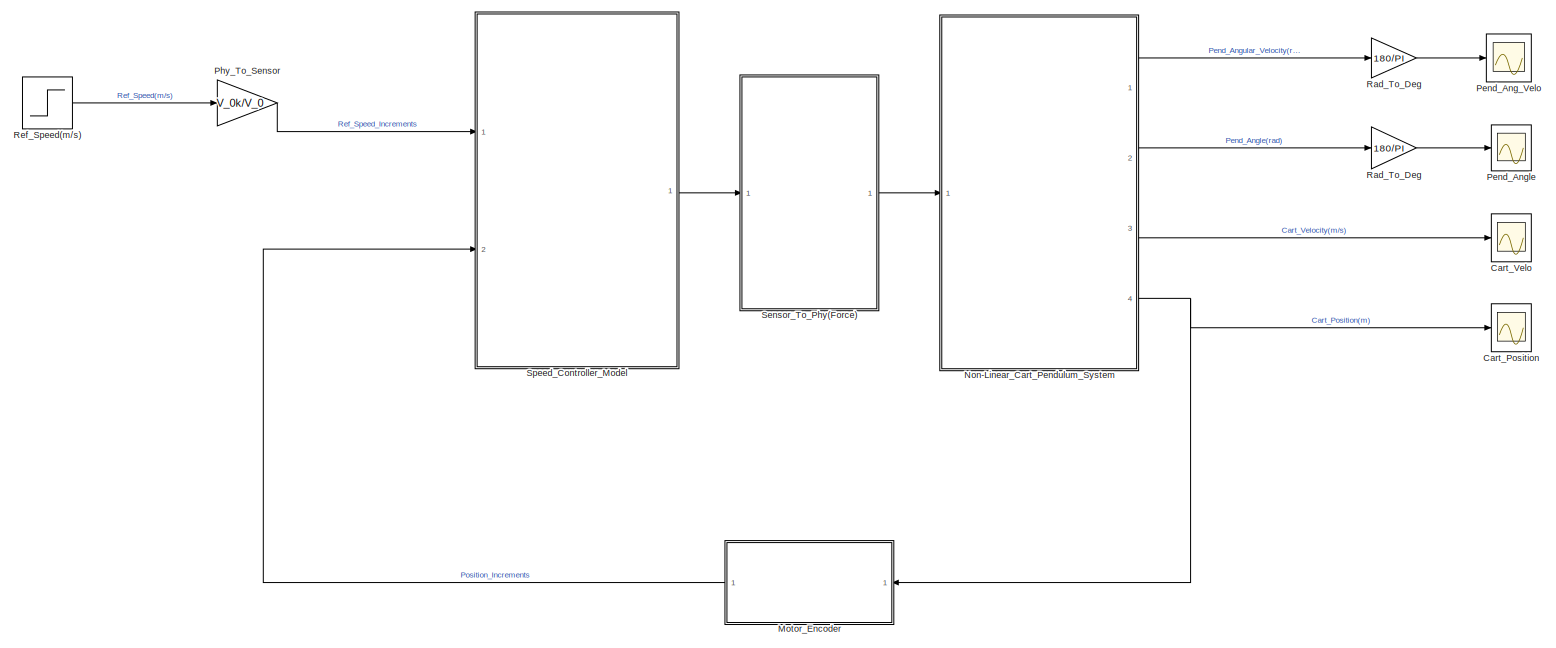
[diagram: root canvas - part 1/1, most of the canvas]
MODEL slx_7cfc7b07550b
KIND model
CONFIG AbsTol = auto
CONFIG EnableMultiTasking = off
CONFIG FixedStep = auto
CONFIG MaxStep = auto
CONFIG MinStep = auto
CONFIG RelTol = 1e-3
CONFIG SampleTimeConstraint = Unconstrained
CONFIG SolverName = VariableStepAuto
CONFIG StartTime = 0.0
CONFIG StopTime = 10.0
BLOCK [Scope] Cart_Position
  Floating = off
  NumInputPorts = 1
  Ports = [1]
  ScopeSpecificationString = Simulink.scopes.TimeScopeBlockCfg('CurrentConfiguration', extmgr.ConfigurationSet(extmgr.Configuration('Core','General UI',true),extmgr.Configuration('Core','Source UI',true),extmgr.Configuration('Sources','WiredSimulink',true,'DataLoggingVariableName','ScopeData1'),extmgr.Configuration('Visuals','Time Domain',true,'SerializedDisplays',{struct('MinYLimReal','-0.56316','MaxYLimReal','5.06841','YLab...<+1433ch>
BLOCK [Scope] Cart_Velo
  Floating = off
  NumInputPorts = 1
  Ports = [1]
  ScopeSpecificationString = Simulink.scopes.TimeScopeBlockCfg('CurrentConfiguration', extmgr.ConfigurationSet(extmgr.Configuration('Core','General UI',true),extmgr.Configuration('Core','Source UI',true),extmgr.Configuration('Sources','WiredSimulink',true,'DataLoggingVariableName','ScopeData2'),extmgr.Configuration('Visuals','Time Domain',true,'SerializedDisplays',{struct('MinYLimReal','-0.06874','MaxYLimReal','0.61869','YLab...<+1454ch>
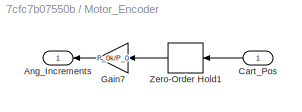
BLOCK [SubSystem] Motor_Encoder
  Ports = [1, 1]
  RequestExecContextInheritance = off
BLOCK [Outport] Motor_Encoder/Ang_Increments
BLOCK [Inport] Motor_Encoder/Cart_Pos
BLOCK [Gain] Motor_Encoder/Gain7
  Gain = P_0k/P_0
  NameLocation = top
BLOCK [ZeroOrderHold] Motor_Encoder/Zero-Order Hold1
  NameLocation = top
  SampleTime = Ts
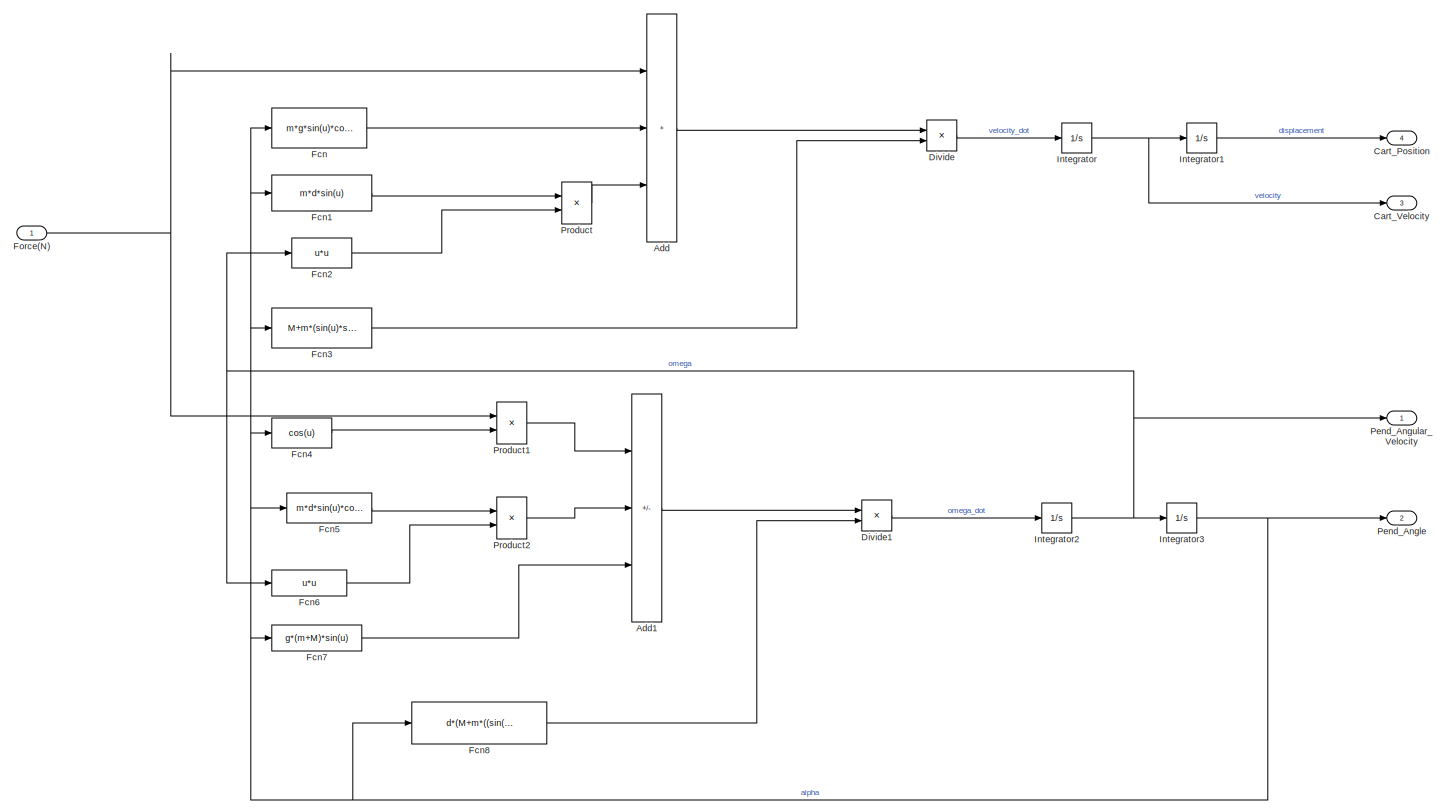
[diagram: Non-Linear_Cart_Pendulum_System - part 1/1, most of the canvas]
BLOCK [SubSystem] Non-Linear_Cart_Pendulum_System
  Ports = [1, 4]
  RequestExecContextInheritance = off
BLOCK [Sum] Non-Linear_Cart_Pendulum_System/Add
  IconShape = rectangular
  Inputs = +++
  Ports = [3, 1]
BLOCK [Sum] Non-Linear_Cart_Pendulum_System/Add1
  IconShape = rectangular
  Inputs = ---
  Ports = [3, 1]
BLOCK [Outport] Non-Linear_Cart_Pendulum_System/Cart_Position
  Port = 4
  VectorParamsAs1DForOutWhenUnconnected = off
BLOCK [Outport] Non-Linear_Cart_Pendulum_System/Cart_Velocity
  Port = 3
  VectorParamsAs1DForOutWhenUnconnected = off
BLOCK [Product] Non-Linear_Cart_Pendulum_System/Divide
  Inputs = */
  Ports = [2, 1]
BLOCK [Product] Non-Linear_Cart_Pendulum_System/Divide1
  Inputs = */
  Ports = [2, 1]
BLOCK [Fcn] Non-Linear_Cart_Pendulum_System/Fcn
  Expr = m*g*sin(u)*cos(u)
BLOCK [Fcn] Non-Linear_Cart_Pendulum_System/Fcn1
  Expr = m*d*sin(u)
BLOCK [Fcn] Non-Linear_Cart_Pendulum_System/Fcn2
  Expr = u*u
BLOCK [Fcn] Non-Linear_Cart_Pendulum_System/Fcn3
  Expr = M+m*(sin(u)*sin(u))
BLOCK [Fcn] Non-Linear_Cart_Pendulum_System/Fcn4
  Expr = cos(u)
BLOCK [Fcn] Non-Linear_Cart_Pendulum_System/Fcn5
  Expr = m*d*sin(u)*cos(u)
BLOCK [Fcn] Non-Linear_Cart_Pendulum_System/Fcn6
  Expr = u*u
BLOCK [Fcn] Non-Linear_Cart_Pendulum_System/Fcn7
  Expr = g*(m+M)*sin(u)
BLOCK [Fcn] Non-Linear_Cart_Pendulum_System/Fcn8
  Expr = d*(M+m*((sin(u)*sin(u))))
BLOCK [Inport] Non-Linear_Cart_Pendulum_System/Force(N)
BLOCK [Integrator] Non-Linear_Cart_Pendulum_System/Integrator
  Ports = [1, 1]
BLOCK [Integrator] Non-Linear_Cart_Pendulum_System/Integrator1
  Ports = [1, 1]
BLOCK [Integrator] Non-Linear_Cart_Pendulum_System/Integrator2
  Ports = [1, 1]
BLOCK [Integrator] Non-Linear_Cart_Pendulum_System/Integrator3
  Ports = [1, 1]
BLOCK [Outport] Non-Linear_Cart_Pendulum_System/Pend_Angle
  Port = 2
  VectorParamsAs1DForOutWhenUnconnected = off
BLOCK [Outport] Non-Linear_Cart_Pendulum_System/Pend_Angular_Velocity
  VectorParamsAs1DForOutWhenUnconnected = off
BLOCK [Product] Non-Linear_Cart_Pendulum_System/Product
  Ports = [2, 1]
BLOCK [Product] Non-Linear_Cart_Pendulum_System/Product1
  Ports = [2, 1]
BLOCK [Product] Non-Linear_Cart_Pendulum_System/Product2
  Ports = [2, 1]
BLOCK [Scope] Pend_Ang_Velo
  Floating = off
  NumInputPorts = 1
  Ports = [1]
  ScopeSpecificationString = Simulink.scopes.TimeScopeBlockCfg('CurrentConfiguration', extmgr.ConfigurationSet(extmgr.Configuration('Core','General UI',true),extmgr.Configuration('Core','Source UI',true),extmgr.Configuration('Sources','WiredSimulink',true,'DataLoggingVariableName','ScopeData3'),extmgr.Configuration('Visuals','Time Domain',true,'SerializedDisplays',{struct('MinYLimReal','-1.82564','MaxYLimReal','1.17546','YLab...<+1394ch>
BLOCK [Scope] Pend_Angle
  Floating = off
  NumInputPorts = 1
  Ports = [1]
  ScopeSpecificationString = Simulink.scopes.TimeScopeBlockCfg('CurrentConfiguration', extmgr.ConfigurationSet(extmgr.Configuration('Core','General UI',true),extmgr.Configuration('Core','Source UI',true),extmgr.Configuration('Sources','WiredSimulink',true),extmgr.Configuration('Visuals','Time Domain',true,'SerializedDisplays',{struct('MinYLimReal','-0.36043','MaxYLimReal','0.24687','YLabelReal','','MinYLimMag','0.00000','MaxY...<+1455ch>
BLOCK [Gain] Phy_To_Sensor
  Gain = V_0k/V_0
BLOCK [Gain] Rad_To_Deg
  Gain = 180/PI
BLOCK [Gain] Rad_To_Deg 
  Gain = 180/PI
BLOCK [Step] Ref_Speed(m//s)
  After = 0.5
  SampleTime = Ts
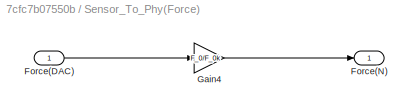
BLOCK [SubSystem] Sensor_To_Phy(Force)
  Ports = [1, 1]
  RequestExecContextInheritance = off
BLOCK [Inport] Sensor_To_Phy(Force)/Force(DAC)
BLOCK [Outport] Sensor_To_Phy(Force)/Force(N)
BLOCK [Gain] Sensor_To_Phy(Force)/Gain4
  Gain = F_0/F_0k
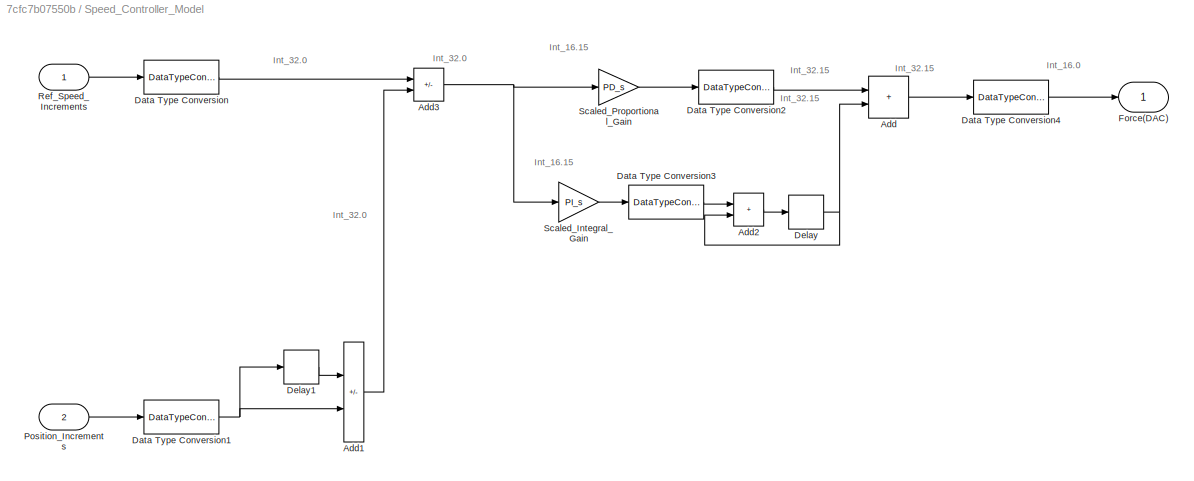
BLOCK [SubSystem] Speed_Controller_Model
  Ports = [2, 1]
  RequestExecContextInheritance = off
BLOCK [Sum] Speed_Controller_Model/Add
  IconShape = rectangular
  Ports = [2, 1]
BLOCK [Sum] Speed_Controller_Model/Add1
  IconShape = rectangular
  Inputs = -+
  Ports = [2, 1]
BLOCK [Sum] Speed_Controller_Model/Add2
  IconShape = rectangular
  Ports = [2, 1]
BLOCK [Sum] Speed_Controller_Model/Add3
  IconShape = rectangular
  Inputs = +-
  Ports = [2, 1]
BLOCK [DataTypeConversion] Speed_Controller_Model/Data Type Conversion
  OutDataTypeStr = int32
  RndMeth = Floor
  SaturateOnIntegerOverflow = off
BLOCK [DataTypeConversion] Speed_Controller_Model/Data Type Conversion1
  OutDataTypeStr = int32
  RndMeth = Floor
  SaturateOnIntegerOverflow = off
BLOCK [DataTypeConversion] Speed_Controller_Model/Data Type Conversion2
  OutDataTypeStr = fixdt(1,32,PI_SHIFT)
  RndMeth = Floor
  SaturateOnIntegerOverflow = off
BLOCK [DataTypeConversion] Speed_Controller_Model/Data Type Conversion3
  OutDataTypeStr = fixdt(1,32,PD_SHIFT)
  RndMeth = Floor
  SaturateOnIntegerOverflow = off
BLOCK [DataTypeConversion] Speed_Controller_Model/Data Type Conversion4
  OutDataTypeStr = int16
  RndMeth = Floor
  SaturateOnIntegerOverflow = off
BLOCK [Delay] Speed_Controller_Model/Delay
  DelayLength = 1
  InputPortMap = u0
  Ports = [1, 1]
  SampleTime = Ts
BLOCK [Delay] Speed_Controller_Model/Delay1
  DelayLength = 1
  InputPortMap = u0
  Ports = [1, 1]
  SampleTime = Ts
BLOCK [Outport] Speed_Controller_Model/Force(DAC)
BLOCK [Inport] Speed_Controller_Model/Position_Increments
  Port = 2
BLOCK [Inport] Speed_Controller_Model/Ref_Speed_Increments
BLOCK [Gain] Speed_Controller_Model/Scaled_Integral_Gain
  Gain = PI_s
BLOCK [Gain] Speed_Controller_Model/Scaled_Proportional_Gain
  Gain = PD_s
ANNOTATION Speed_Controller_Model: Int_16.15
ANNOTATION Speed_Controller_Model: Int_16.0
ANNOTATION Speed_Controller_Model: Int_32.15
ANNOTATION Speed_Controller_Model: Int_32.0
LINE Motor_Encoder/Cart_Pos:1 -> Motor_Encoder/Zero-Order Hold1:1
LINE Motor_Encoder/Gain7:1 -> Motor_Encoder/Ang_Increments:1
LINE Motor_Encoder/Zero-Order Hold1:1 -> Motor_Encoder/Gain7:1
LINE Motor_Encoder:1 -> Speed_Controller_Model:2
LINE Non-Linear_Cart_Pendulum_System/Add1:1 -> Non-Linear_Cart_Pendulum_System/Divide1:1
LINE Non-Linear_Cart_Pendulum_System/Add:1 -> Non-Linear_Cart_Pendulum_System/Divide:1
LINE Non-Linear_Cart_Pendulum_System/Divide1:1 -> Non-Linear_Cart_Pendulum_System/Integrator2:1
LINE Non-Linear_Cart_Pendulum_System/Divide:1 -> Non-Linear_Cart_Pendulum_System/Integrator:1
LINE Non-Linear_Cart_Pendulum_System/Fcn1:1 -> Non-Linear_Cart_Pendulum_System/Product:1
LINE Non-Linear_Cart_Pendulum_System/Fcn2:1 -> Non-Linear_Cart_Pendulum_System/Product:2
LINE Non-Linear_Cart_Pendulum_System/Fcn3:1 -> Non-Linear_Cart_Pendulum_System/Divide:2
LINE Non-Linear_Cart_Pendulum_System/Fcn4:1 -> Non-Linear_Cart_Pendulum_System/Product1:2
LINE Non-Linear_Cart_Pendulum_System/Fcn5:1 -> Non-Linear_Cart_Pendulum_System/Product2:1
LINE Non-Linear_Cart_Pendulum_System/Fcn6:1 -> Non-Linear_Cart_Pendulum_System/Product2:2
LINE Non-Linear_Cart_Pendulum_System/Fcn7:1 -> Non-Linear_Cart_Pendulum_System/Add1:3
LINE Non-Linear_Cart_Pendulum_System/Fcn8:1 -> Non-Linear_Cart_Pendulum_System/Divide1:2
LINE Non-Linear_Cart_Pendulum_System/Fcn:1 -> Non-Linear_Cart_Pendulum_System/Add:2
NET Non-Linear_Cart_Pendulum_System/Force(N):1 -> Non-Linear_Cart_Pendulum_System/Add:1, Non-Linear_Cart_Pendulum_System/Product1:1
LINE Non-Linear_Cart_Pendulum_System/Integrator1:1 -> Non-Linear_Cart_Pendulum_System/Cart_Position:1
NET Non-Linear_Cart_Pendulum_System/Integrator2:1 -> Non-Linear_Cart_Pendulum_System/Fcn2:1, Non-Linear_Cart_Pendulum_System/Fcn6:1, Non-Linear_Cart_Pendulum_System/Integrator3:1, Non-Linear_Cart_Pendulum_System/Pend_Angular_Velocity:1
NET Non-Linear_Cart_Pendulum_System/Integrator3:1 -> Non-Linear_Cart_Pendulum_System/Fcn1:1, Non-Linear_Cart_Pendulum_System/Fcn3:1, Non-Linear_Cart_Pendulum_System/Fcn4:1, Non-Linear_Cart_Pendulum_System/Fcn5:1, Non-Linear_Cart_Pendulum_System/Fcn7:1, Non-Linear_Cart_Pendulum_System/Fcn8:1, Non-Linear_Cart_Pendulum_System/Fcn:1, Non-Linear_Cart_Pendulum_System/Pend_Angle:1
NET Non-Linear_Cart_Pendulum_System/Integrator:1 -> Non-Linear_Cart_Pendulum_System/Cart_Velocity:1, Non-Linear_Cart_Pendulum_System/Integrator1:1
LINE Non-Linear_Cart_Pendulum_System/Product1:1 -> Non-Linear_Cart_Pendulum_System/Add1:1
LINE Non-Linear_Cart_Pendulum_System/Product2:1 -> Non-Linear_Cart_Pendulum_System/Add1:2
LINE Non-Linear_Cart_Pendulum_System/Product:1 -> Non-Linear_Cart_Pendulum_System/Add:3
LINE Non-Linear_Cart_Pendulum_System:1 -> Rad_To_Deg:1
LINE Non-Linear_Cart_Pendulum_System:2 -> Rad_To_Deg :1
LINE Non-Linear_Cart_Pendulum_System:3 -> Cart_Velo:1
NET Non-Linear_Cart_Pendulum_System:4 -> Cart_Position:1, Motor_Encoder:1
LINE Phy_To_Sensor:1 -> Speed_Controller_Model:1
LINE Rad_To_Deg :1 -> Pend_Angle:1
LINE Rad_To_Deg:1 -> Pend_Ang_Velo:1
LINE Ref_Speed(m//s):1 -> Phy_To_Sensor:1
LINE Sensor_To_Phy(Force)/Force(DAC):1 -> Sensor_To_Phy(Force)/Gain4:1
LINE Sensor_To_Phy(Force)/Gain4:1 -> Sensor_To_Phy(Force)/Force(N):1
LINE Sensor_To_Phy(Force):1 -> Non-Linear_Cart_Pendulum_System:1
LINE Speed_Controller_Model/Add1:1 -> Speed_Controller_Model/Add3:2
LINE Speed_Controller_Model/Add2:1 -> Speed_Controller_Model/Delay:1
NET Speed_Controller_Model/Add3:1 -> Speed_Controller_Model/Scaled_Integral_Gain:1, Speed_Controller_Model/Scaled_Proportional_Gain:1
LINE Speed_Controller_Model/Add:1 -> Speed_Controller_Model/Data Type Conversion4:1
NET Speed_Controller_Model/Data Type Conversion1:1 -> Speed_Controller_Model/Add1:2, Speed_Controller_Model/Delay1:1
LINE Speed_Controller_Model/Data Type Conversion2:1 -> Speed_Controller_Model/Add:1
LINE Speed_Controller_Model/Data Type Conversion3:1 -> Speed_Controller_Model/Add2:1
LINE Speed_Controller_Model/Data Type Conversion4:1 -> Speed_Controller_Model/Force(DAC):1
LINE Speed_Controller_Model/Data Type Conversion:1 -> Speed_Controller_Model/Add3:1
LINE Speed_Controller_Model/Delay1:1 -> Speed_Controller_Model/Add1:1
NET Speed_Controller_Model/Delay:1 -> Speed_Controller_Model/Add2:2, Speed_Controller_Model/Add:2
LINE Speed_Controller_Model/Position_Increments:1 -> Speed_Controller_Model/Data Type Conversion1:1
LINE Speed_Controller_Model/Ref_Speed_Increments:1 -> Speed_Controller_Model/Data Type Conversion:1
LINE Speed_Controller_Model/Scaled_Integral_Gain:1 -> Speed_Controller_Model/Data Type Conversion3:1
LINE Speed_Controller_Model/Scaled_Proportional_Gain:1 -> Speed_Controller_Model/Data Type Conversion2:1
LINE Speed_Controller_Model:1 -> Sensor_To_Phy(Force):1
note: NET lines group one-source signal fan-out (src -> all destinations, sorted); 1:1 wires keep LINE
